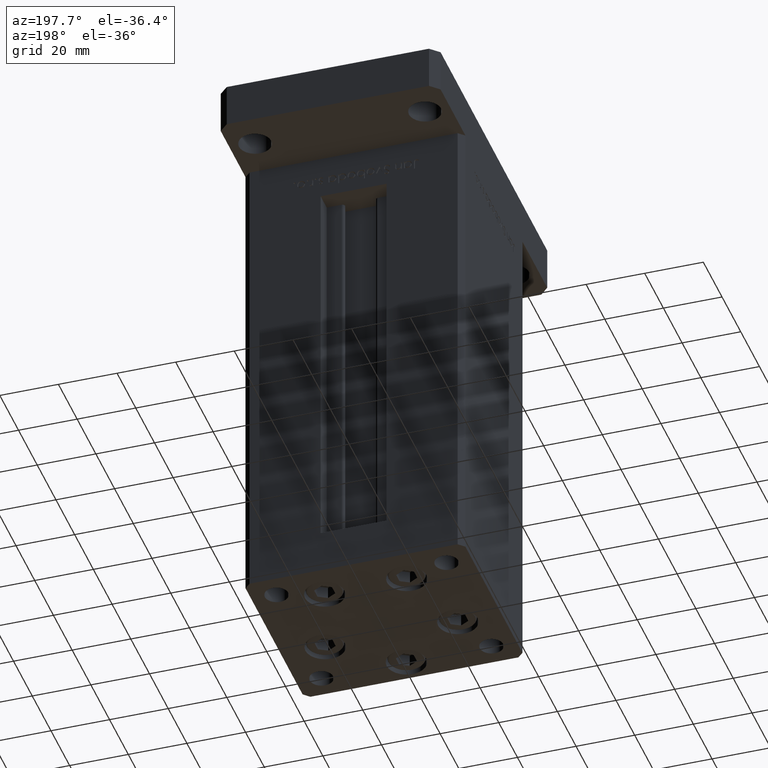
[diagram: clean part render]
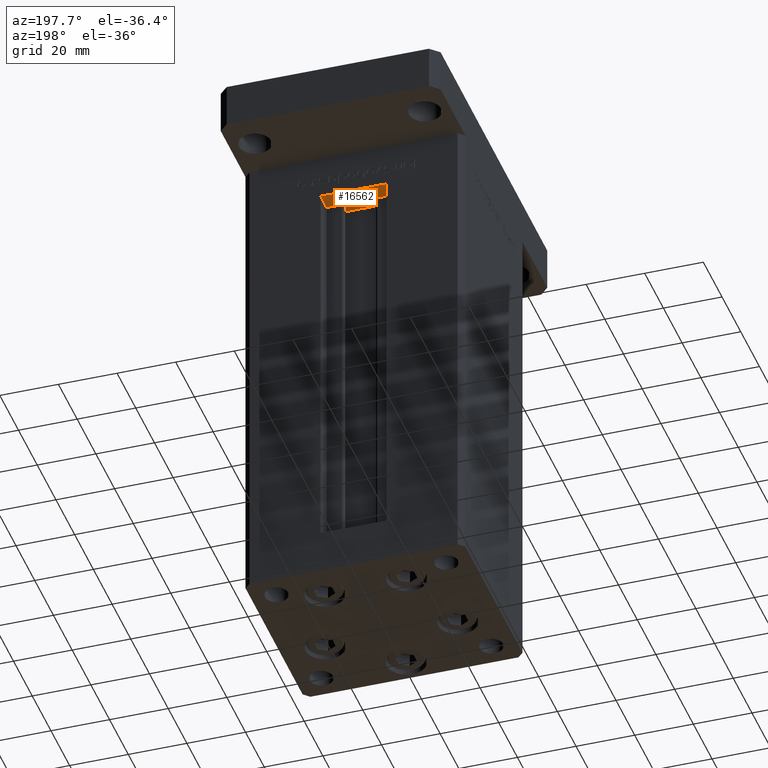
[diagram: same view with one face highlighted and labeled with its STEP entity id]
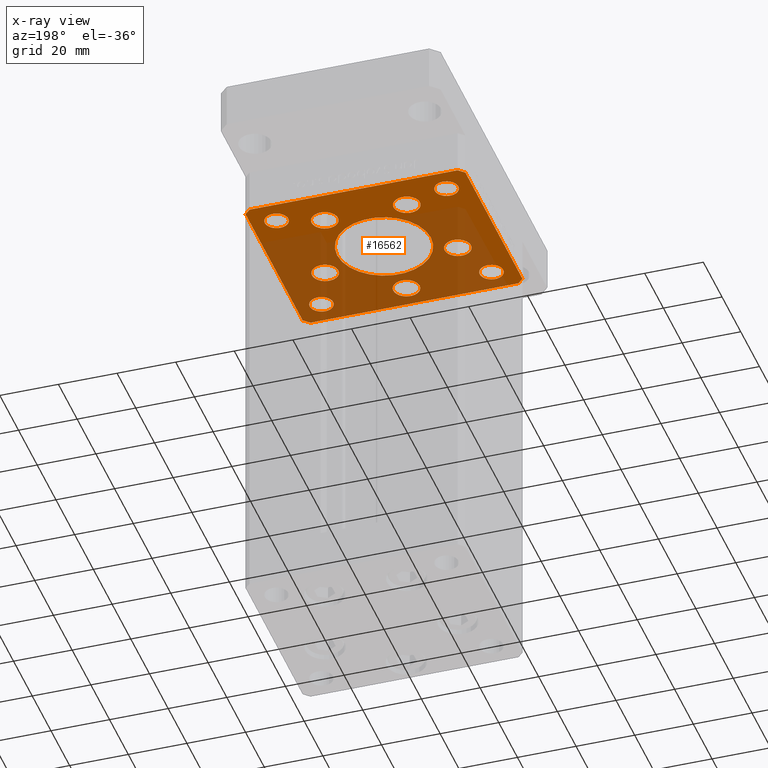
[diagram: x-ray of the same camera — body ghosted, the highlighted face saturated]
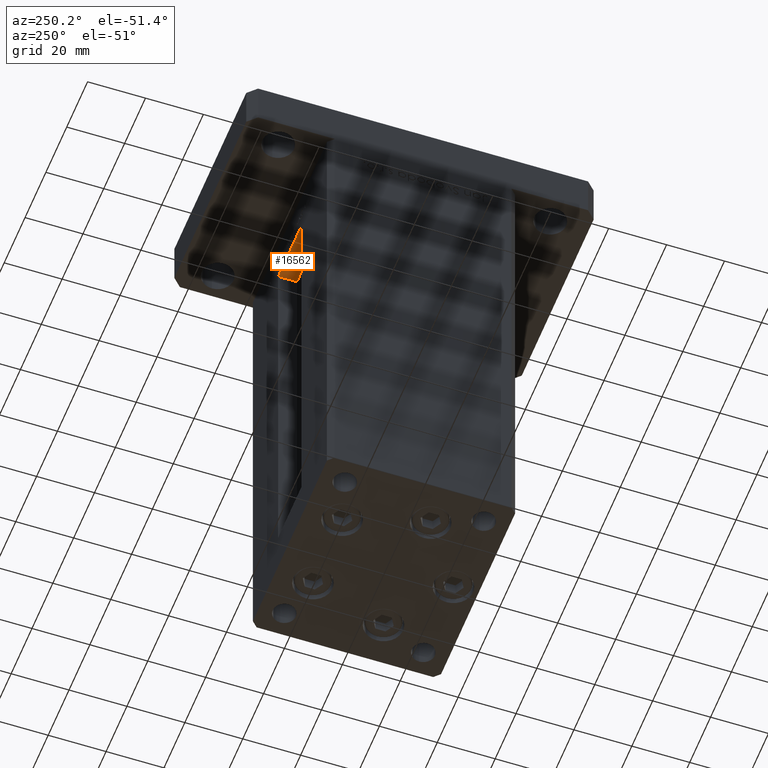
[diagram: same view with one face highlighted and labeled with its STEP entity id]
A machine part, auxiliary view. The second image highlights one B-rep face of the part: STEP entity #16562.
The next image is the same camera in x-ray: the body ghosted, the highlighted face saturated — about 59% of this face is hidden behind the body in this view.
A second angle (auxiliary view) of the same face is appended — the face is thin or edge-on in the first view.
In plain terms, the highlighted planar face has unit normal (0, 0, 1).
Its self-contained STEP definition (entity closure, byte-faithful):
#244 = CARTESIAN_POINT ( 'NONE',  ( -27.12741699796953299, -8.000000000000000000, -15.00000000000000000 ) ) ;
#480 = VERTEX_POINT ( 'NONE', #35159 ) ;
#587 = DIRECTION ( 'NONE',  ( 1.000000000000000000, 0.000000000000000000, 0.000000000000000000 ) ) ;
#772 = CIRCLE ( 'NONE', #6809, 3.999999999999996447 ) ;
#1152 = AXIS2_PLACEMENT_3D ( 'NONE', #46467, #50280, #17977 ) ;
#1367 = DIRECTION ( 'NONE',  ( 1.000000000000000000, 0.000000000000000000, 0.000000000000000000 ) ) ;
#1419 = AXIS2_PLACEMENT_3D ( 'NONE', #44611, #48950, #37286 ) ;
#1457 = AXIS2_PLACEMENT_3D ( 'NONE', #18204, #14936, #43148 ) ;
#1461 = VERTEX_POINT ( 'NONE', #46827 ) ;
#1472 = AXIS2_PLACEMENT_3D ( 'NONE', #30122, #37461, #29062 ) ;
#1492 = CARTESIAN_POINT ( 'NONE',  ( 35.50000000000000000, 32.49999999999999289, -15.00000000000000000 ) ) ;
#1499 = LINE ( 'NONE', #2299, #52397 ) ;
#1659 = EDGE_LOOP ( 'NONE', ( #9733, #17841 ) ) ;
#2299 = CARTESIAN_POINT ( 'NONE',  ( 35.50000000000000000, 32.49999999999999289, -15.00000000000000000 ) ) ;
#2612 = CARTESIAN_POINT ( 'NONE',  ( 0.000000000000000000, -24.00000000000001066, -15.00000000000000000 ) ) ;
#2730 = DIRECTION ( 'NONE',  ( 0.000000000000000000, -0.000000000000000000, -1.000000000000000000 ) ) ;
#2997 = DIRECTION ( 'NONE',  ( 1.000000000000000000, 0.000000000000000000, 0.000000000000000000 ) ) ;
#3178 = CIRCLE ( 'NONE', #40387, 4.499999999999997335 ) ;
#3683 = EDGE_LOOP ( 'NONE', ( #8893, #17832 ) ) ;
#4376 = VERTEX_POINT ( 'NONE', #16429 ) ;
#4392 = CARTESIAN_POINT ( 'NONE',  ( -13.99106857963324124, 19.50000000000000000, -15.00000000000000000 ) ) ;
#4536 = CIRCLE ( 'NONE', #53010, 3.999999999999996447 ) ;
#4809 = ORIENTED_EDGE ( 'NONE', *, *, #29317, .F. ) ;
#5311 = FACE_BOUND ( 'NONE', #3683, .T. ) ;
#5689 = DIRECTION ( 'NONE',  ( 0.7071067811865463515, 0.7071067811865487940, 0.000000000000000000 ) ) ;
#6235 = EDGE_LOOP ( 'NONE', ( #37870, #4809 ) ) ;
#6254 = ORIENTED_EDGE ( 'NONE', *, *, #25591, .F. ) ;
#6809 = AXIS2_PLACEMENT_3D ( 'NONE', #19136, #39737, #42999 ) ;
#6948 = EDGE_CURVE ( 'NONE', #33023, #41171, #50171, .T. ) ;
#7063 = ORIENTED_EDGE ( 'NONE', *, *, #50058, .F. ) ;
#7759 = ORIENTED_EDGE ( 'NONE', *, *, #29267, .F. ) ;
#7893 = DIRECTION ( 'NONE',  ( -0.000000000000000000, -0.000000000000000000, -1.000000000000000000 ) ) ;
#8120 = ORIENTED_EDGE ( 'NONE', *, *, #29520, .T. ) ;
#8382 = VECTOR ( 'NONE', #5689, 1000.000000000000000 ) ;
#8893 = ORIENTED_EDGE ( 'NONE', *, *, #31384, .F. ) ;
#9128 = FACE_BOUND ( 'NONE', #32254, .T. ) ;
#9393 = FACE_BOUND ( 'NONE', #44944, .T. ) ;
#9646 = FACE_BOUND ( 'NONE', #24873, .T. ) ;
#9733 = ORIENTED_EDGE ( 'NONE', *, *, #28221, .F. ) ;
#9857 = DIRECTION ( 'NONE',  ( 0.000000000000000000, -0.000000000000000000, -1.000000000000000000 ) ) ;
#10280 = CIRCLE ( 'NONE', #18057, 4.500000000000005329 ) ;
#10323 = AXIS2_PLACEMENT_3D ( 'NONE', #23260, #44684, #19742 ) ;
#10444 = EDGE_CURVE ( 'NONE', #44048, #10843, #32278, .T. ) ;
#10486 = CARTESIAN_POINT ( 'NONE',  ( 0.000000000000000000, 0.000000000000000000, -15.00000000000000000 ) ) ;
#10843 = VERTEX_POINT ( 'NONE', #28467 ) ;
#10942 = EDGE_CURVE ( 'NONE', #37726, #47672, #24122, .T. ) ;
#10961 = ORIENTED_EDGE ( 'NONE', *, *, #46924, .F. ) ;
#11614 = DIRECTION ( 'NONE',  ( 0.000000000000000000, 0.000000000000000000, 1.000000000000000000 ) ) ;
#11751 = VECTOR ( 'NONE', #12612, 1000.000000000000000 ) ;
#11824 = DIRECTION ( 'NONE',  ( 0.000000000000000000, -0.000000000000000000, -1.000000000000000000 ) ) ;
#12174 = CARTESIAN_POINT ( 'NONE',  ( 24.99999999999999645, 24.00000000000000355, -15.00000000000000000 ) ) ;
#12539 = CIRCLE ( 'NONE', #40218, 4.000000000000000000 ) ;
#12612 = DIRECTION ( 'NONE',  ( 0.7071067811865512365, -0.7071067811865439090, 0.000000000000000000 ) ) ;
#12741 = AXIS2_PLACEMENT_3D ( 'NONE', #23258, #19466, #28891 ) ;
#12886 = CARTESIAN_POINT ( 'NONE',  ( 13.99106857963324124, 19.50000000000000000, -15.00000000000000000 ) ) ;
#12923 = CARTESIAN_POINT ( 'NONE',  ( -29.00000000000000000, 24.00000000000000711, -15.00000000000000000 ) ) ;
#12970 = CARTESIAN_POINT ( 'NONE',  ( 25.00000000000000355, -23.99999999999999645, -15.00000000000000000 ) ) ;
#13377 = CARTESIAN_POINT ( 'NONE',  ( 33.00000000000000000, -23.99999999999999645, -15.00000000000000000 ) ) ;
#13531 = CIRCLE ( 'NONE', #1419, 4.000000000000000000 ) ;
#14936 = DIRECTION ( 'NONE',  ( 0.000000000000000000, -0.000000000000000000, -1.000000000000000000 ) ) ;
#15020 = CARTESIAN_POINT ( 'NONE',  ( -35.50000000000001421, -32.50000000000000711, -15.00000000000000000 ) ) ;
#15356 = CARTESIAN_POINT ( 'NONE',  ( 9.491068579633235913, 19.50000000000000000, -15.00000000000000000 ) ) ;
#16076 = VERTEX_POINT ( 'NONE', #35498 ) ;
#16429 = CARTESIAN_POINT ( 'NONE',  ( -33.00000000000000000, 24.00000000000000711, -15.00000000000000000 ) ) ;
#16562 = ADVANCED_FACE ( 'NONE', ( #9128, #42192, #34061, #50866, #50596, #46527, #9646, #9393, #42444, #5311, #26173 ), #29201, .F. ) ;
#16624 = EDGE_CURVE ( 'NONE', #10843, #44048, #48073, .T. ) ;
#16716 = CIRCLE ( 'NONE', #1152, 4.500000000000001776 ) ;
#16754 = ORIENTED_EDGE ( 'NONE', *, *, #47394, .F. ) ;
#16797 = EDGE_LOOP ( 'NONE', ( #46555, #6254 ) ) ;
#16867 = DIRECTION ( 'NONE',  ( -1.000000000000000000, 0.000000000000000000, 0.000000000000000000 ) ) ;
#17480 = EDGE_CURVE ( 'NONE', #43196, #39863, #52169, .T. ) ;
#17559 = VERTEX_POINT ( 'NONE', #33727 ) ;
#17735 = VERTEX_POINT ( 'NONE', #48842 ) ;
#17769 = CARTESIAN_POINT ( 'NONE',  ( 0.000000000000000000, 0.000000000000000000, -15.00000000000000000 ) ) ;
#17832 = ORIENTED_EDGE ( 'NONE', *, *, #45176, .F. ) ;
#17841 = ORIENTED_EDGE ( 'NONE', *, *, #51163, .F. ) ;
#17977 = DIRECTION ( 'NONE',  ( 1.000000000000000000, 0.000000000000000000, 0.000000000000000000 ) ) ;
#18057 = AXIS2_PLACEMENT_3D ( 'NONE', #48540, #2730, #2997 ) ;
#18204 = CARTESIAN_POINT ( 'NONE',  ( 0.000000000000000000, 0.000000000000000000, -15.00000000000000000 ) ) ;
#18367 = CARTESIAN_POINT ( 'NONE',  ( -37.50000000000000000, -30.50000000000004263, -15.00000000000000000 ) ) ;
#18378 = DIRECTION ( 'NONE',  ( -0.7071067811865524577, 0.7071067811865426878, 0.000000000000000000 ) ) ;
#19136 = CARTESIAN_POINT ( 'NONE',  ( -29.00000000000000000, -23.99999999999999645, -15.00000000000000000 ) ) ;
#19466 = DIRECTION ( 'NONE',  ( -0.000000000000000000, -0.000000000000000000, -1.000000000000000000 ) ) ;
#19540 = CARTESIAN_POINT ( 'NONE',  ( -29.00000000000000000, 24.00000000000000711, -15.00000000000000000 ) ) ;
#19709 = CARTESIAN_POINT ( 'NONE',  ( 35.50000000000001421, -32.49999999999992184, -15.00000000000000000 ) ) ;
#19742 = DIRECTION ( 'NONE',  ( 1.000000000000000000, 0.000000000000000000, 0.000000000000000000 ) ) ;
#19874 = EDGE_CURVE ( 'NONE', #39863, #37726, #43086, .T. ) ;
#20207 = VECTOR ( 'NONE', #45276, 1000.000000000000000 ) ;
#20225 = EDGE_CURVE ( 'NONE', #44536, #33023, #1499, .T. ) ;
#20461 = VECTOR ( 'NONE', #18378, 1000.000000000000000 ) ;
#20684 = VERTEX_POINT ( 'NONE', #45600 ) ;
#20866 = ORIENTED_EDGE ( 'NONE', *, *, #30642, .T. ) ;
#20910 = EDGE_CURVE ( 'NONE', #26628, #17559, #24828, .T. ) ;
#21457 = CARTESIAN_POINT ( 'NONE',  ( 29.00000000000000355, -23.99999999999999645, -15.00000000000000000 ) ) ;
#21510 = CIRCLE ( 'NONE', #29306, 4.000000000000000000 ) ;
#22096 = DIRECTION ( 'NONE',  ( 1.000000000000000000, 0.000000000000000000, 0.000000000000000000 ) ) ;
#22346 = VECTOR ( 'NONE', #28202, 1000.000000000000000 ) ;
#22734 = ORIENTED_EDGE ( 'NONE', *, *, #39019, .F. ) ;
#23136 = CARTESIAN_POINT ( 'NONE',  ( 37.50000000000000711, 30.50000000000001421, -15.00000000000000000 ) ) ;
#23258 = CARTESIAN_POINT ( 'NONE',  ( 29.00000000000000355, -23.99999999999999645, -15.00000000000000000 ) ) ;
#23260 = CARTESIAN_POINT ( 'NONE',  ( 29.00000000000000000, 24.00000000000000355, -15.00000000000000000 ) ) ;
#23636 = AXIS2_PLACEMENT_3D ( 'NONE', #29942, #9857, #46480 ) ;
#24005 = VERTEX_POINT ( 'NONE', #12174 ) ;
#24017 = EDGE_CURVE ( 'NONE', #24880, #480, #3178, .T. ) ;
#24122 = LINE ( 'NONE', #44456, #20207 ) ;
#24329 = CARTESIAN_POINT ( 'NONE',  ( -37.50000000000001421, 30.50000000000000000, -15.00000000000000000 ) ) ;
#24828 = CIRCLE ( 'NONE', #46359, 4.500000000000000888 ) ;
#24864 = CIRCLE ( 'NONE', #1472, 4.500000000000000888 ) ;
#24873 = EDGE_LOOP ( 'NONE', ( #28126, #20866 ) ) ;
#24880 = VERTEX_POINT ( 'NONE', #244 ) ;
#25053 = CIRCLE ( 'NONE', #47558, 4.000000000000000000 ) ;
#25591 = EDGE_CURVE ( 'NONE', #17559, #26628, #24864, .T. ) ;
#25650 = DIRECTION ( 'NONE',  ( -1.000000000000000000, 0.000000000000000000, 0.000000000000000000 ) ) ;
#26173 = FACE_BOUND ( 'NONE', #1659, .T. ) ;
#26628 = VERTEX_POINT ( 'NONE', #44646 ) ;
#27018 = DIRECTION ( 'NONE',  ( 0.000000000000000000, -0.000000000000000000, -1.000000000000000000 ) ) ;
#27132 = CARTESIAN_POINT ( 'NONE',  ( -18.49106857963323947, 19.50000000000000000, -15.00000000000000000 ) ) ;
#27300 = AXIS2_PLACEMENT_3D ( 'NONE', #28183, #45000, #41470 ) ;
#27516 = VERTEX_POINT ( 'NONE', #18367 ) ;
#27872 = DIRECTION ( 'NONE',  ( 1.000000000000000000, 0.000000000000000000, 0.000000000000000000 ) ) ;
#28126 = ORIENTED_EDGE ( 'NONE', *, *, #50454, .T. ) ;
#28183 = CARTESIAN_POINT ( 'NONE',  ( -22.62741699796953299, -8.000000000000000000, -15.00000000000000000 ) ) ;
#28202 = DIRECTION ( 'NONE',  ( 2.275047181608926165E-16, -1.000000000000000000, 0.000000000000000000 ) ) ;
#28221 = EDGE_CURVE ( 'NONE', #38616, #52174, #21510, .T. ) ;
#28467 = CARTESIAN_POINT ( 'NONE',  ( -9.491068579633243019, 19.50000000000000000, -15.00000000000000000 ) ) ;
#28522 = DIRECTION ( 'NONE',  ( 0.000000000000000000, -0.000000000000000000, -1.000000000000000000 ) ) ;
#28668 = ORIENTED_EDGE ( 'NONE', *, *, #10444, .F. ) ;
#28828 = CIRCLE ( 'NONE', #52196, 16.00000000000000355 ) ;
#28891 = DIRECTION ( 'NONE',  ( -1.000000000000000000, 0.000000000000000000, 0.000000000000000000 ) ) ;
#29033 = CARTESIAN_POINT ( 'NONE',  ( 16.00000000000000355, 0.000000000000000000, -15.00000000000000000 ) ) ;
#29062 = DIRECTION ( 'NONE',  ( 1.000000000000000000, 0.000000000000000000, 0.000000000000000000 ) ) ;
#29085 = CARTESIAN_POINT ( 'NONE',  ( 37.50000000000000711, 30.50000000000001421, -15.00000000000000000 ) ) ;
#29201 = PLANE ( 'NONE',  #41148 ) ;
#29267 = EDGE_CURVE ( 'NONE', #41171, #27516, #38283, .T. ) ;
#29306 = AXIS2_PLACEMENT_3D ( 'NONE', #21457, #33419, #16867 ) ;
#29317 = EDGE_CURVE ( 'NONE', #39038, #45077, #10280, .T. ) ;
#29520 = EDGE_CURVE ( 'NONE', #43683, #20684, #772, .T. ) ;
#29835 = CARTESIAN_POINT ( 'NONE',  ( 35.50000000000001421, -32.49999999999992184, -15.00000000000000000 ) ) ;
#29942 = CARTESIAN_POINT ( 'NONE',  ( -13.99106857963324124, 19.50000000000000000, -15.00000000000000000 ) ) ;
#30122 = CARTESIAN_POINT ( 'NONE',  ( 22.62741699796953299, -8.000000000000000000, -15.00000000000000000 ) ) ;
#30642 = EDGE_CURVE ( 'NONE', #24005, #17735, #51004, .T. ) ;
#31280 = CARTESIAN_POINT ( 'NONE',  ( -25.00000000000000355, -23.99999999999999645, -15.00000000000000000 ) ) ;
#31320 = ORIENTED_EDGE ( 'NONE', *, *, #20225, .F. ) ;
#31384 = EDGE_CURVE ( 'NONE', #51134, #4376, #25053, .T. ) ;
#31568 = DIRECTION ( 'NONE',  ( 1.000000000000000000, 1.172770800660376149E-15, 0.000000000000000000 ) ) ;
#32254 = EDGE_LOOP ( 'NONE', ( #22734, #49853 ) ) ;
#32268 = ORIENTED_EDGE ( 'NONE', *, *, #10942, .F. ) ;
#32278 = CIRCLE ( 'NONE', #23636, 4.499999999999999112 ) ;
#32650 = EDGE_LOOP ( 'NONE', ( #38651, #28668 ) ) ;
#32994 = DIRECTION ( 'NONE',  ( -0.000000000000000000, -0.000000000000000000, -1.000000000000000000 ) ) ;
#33023 = VERTEX_POINT ( 'NONE', #46927 ) ;
#33419 = DIRECTION ( 'NONE',  ( -0.000000000000000000, -0.000000000000000000, -1.000000000000000000 ) ) ;
#33630 = CARTESIAN_POINT ( 'NONE',  ( -35.50000000000000711, 32.49999999999997868, -15.00000000000000000 ) ) ;
#33727 = CARTESIAN_POINT ( 'NONE',  ( 18.12741699796953299, -8.000000000000000000, -15.00000000000000000 ) ) ;
#34061 = FACE_BOUND ( 'NONE', #38017, .T. ) ;
#34327 = DIRECTION ( 'NONE',  ( -0.000000000000000000, 0.000000000000000000, 1.000000000000000000 ) ) ;
#34998 = EDGE_LOOP ( 'NONE', ( #10961, #51527 ) ) ;
#35159 = CARTESIAN_POINT ( 'NONE',  ( -18.12741699796953654, -8.000000000000000000, -15.00000000000000000 ) ) ;
#35498 = CARTESIAN_POINT ( 'NONE',  ( -4.500000000000001776, -24.00000000000001066, -15.00000000000000000 ) ) ;
#36615 = DIRECTION ( 'NONE',  ( -1.000000000000000000, 0.000000000000000000, 0.000000000000000000 ) ) ;
#37279 = DIRECTION ( 'NONE',  ( 1.000000000000000000, 0.000000000000000000, 0.000000000000000000 ) ) ;
#37286 = DIRECTION ( 'NONE',  ( 1.000000000000000000, 0.000000000000000000, 0.000000000000000000 ) ) ;
#37461 = DIRECTION ( 'NONE',  ( 0.000000000000000000, -0.000000000000000000, -1.000000000000000000 ) ) ;
#37709 = AXIS2_PLACEMENT_3D ( 'NONE', #4392, #28522, #587 ) ;
#37726 = VERTEX_POINT ( 'NONE', #38751 ) ;
#37765 = EDGE_CURVE ( 'NONE', #20684, #43683, #4536, .T. ) ;
#37870 = ORIENTED_EDGE ( 'NONE', *, *, #52492, .F. ) ;
#38017 = EDGE_LOOP ( 'NONE', ( #16754, #51992 ) ) ;
#38283 = LINE ( 'NONE', #43940, #22346 ) ;
#38291 = VECTOR ( 'NONE', #42529, 1000.000000000000000 ) ;
#38386 = ORIENTED_EDGE ( 'NONE', *, *, #52629, .F. ) ;
#38478 = CARTESIAN_POINT ( 'NONE',  ( -25.00000000000000000, 24.00000000000000711, -15.00000000000000000 ) ) ;
#38513 = DIRECTION ( 'NONE',  ( 0.000000000000000000, -0.000000000000000000, -1.000000000000000000 ) ) ;
#38616 = VERTEX_POINT ( 'NONE', #13377 ) ;
#38651 = ORIENTED_EDGE ( 'NONE', *, *, #16624, .F. ) ;
#38751 = CARTESIAN_POINT ( 'NONE',  ( 37.50000000000000711, -30.49999999999992895, -15.00000000000000000 ) ) ;
#39019 = EDGE_CURVE ( 'NONE', #47982, #1461, #28828, .T. ) ;
#39038 = VERTEX_POINT ( 'NONE', #15356 ) ;
#39737 = DIRECTION ( 'NONE',  ( 0.000000000000000000, 0.000000000000000000, 1.000000000000000000 ) ) ;
#39863 = VERTEX_POINT ( 'NONE', #19709 ) ;
#40218 = AXIS2_PLACEMENT_3D ( 'NONE', #12923, #32994, #25650 ) ;
#40387 = AXIS2_PLACEMENT_3D ( 'NONE', #50586, #45245, #46515 ) ;
#40412 = EDGE_CURVE ( 'NONE', #16076, #53165, #16716, .T. ) ;
#40663 = CARTESIAN_POINT ( 'NONE',  ( 4.500000000000001776, -24.00000000000001066, -15.00000000000000000 ) ) ;
#41096 = ORIENTED_EDGE ( 'NONE', *, *, #37765, .T. ) ;
#41148 = AXIS2_PLACEMENT_3D ( 'NONE', #17769, #34327, #22096 ) ;
#41171 = VERTEX_POINT ( 'NONE', #24329 ) ;
#41470 = DIRECTION ( 'NONE',  ( 1.000000000000000000, 0.000000000000000000, 0.000000000000000000 ) ) ;
#41877 = LINE ( 'NONE', #45949, #11751 ) ;
#42192 = FACE_BOUND ( 'NONE', #34998, .T. ) ;
#42199 = ORIENTED_EDGE ( 'NONE', *, *, #17480, .F. ) ;
#42444 = FACE_OUTER_BOUND ( 'NONE', #46415, .T. ) ;
#42529 = DIRECTION ( 'NONE',  ( -0.7071067811865524577, -0.7071067811865426878, 0.000000000000000000 ) ) ;
#42565 = CARTESIAN_POINT ( 'NONE',  ( 22.62741699796953299, -8.000000000000000000, -15.00000000000000000 ) ) ;
#42599 = CARTESIAN_POINT ( 'NONE',  ( -35.50000000000001421, -32.50000000000000711, -15.00000000000000000 ) ) ;
#42999 = DIRECTION ( 'NONE',  ( 1.000000000000000000, 0.000000000000000000, 0.000000000000000000 ) ) ;
#43086 = LINE ( 'NONE', #29835, #8382 ) ;
#43148 = DIRECTION ( 'NONE',  ( 1.000000000000000000, 0.000000000000000000, 0.000000000000000000 ) ) ;
#43196 = VERTEX_POINT ( 'NONE', #42599 ) ;
#43683 = VERTEX_POINT ( 'NONE', #31280 ) ;
#43820 = DIRECTION ( 'NONE',  ( 1.000000000000000000, 0.000000000000000000, 0.000000000000000000 ) ) ;
#43868 = CIRCLE ( 'NONE', #12741, 4.000000000000000000 ) ;
#43940 = CARTESIAN_POINT ( 'NONE',  ( -37.50000000000001421, 30.50000000000000000, -15.00000000000000000 ) ) ;
#44048 = VERTEX_POINT ( 'NONE', #27132 ) ;
#44097 = DIRECTION ( 'NONE',  ( 1.000000000000000000, 0.000000000000000000, 0.000000000000000000 ) ) ;
#44125 = ORIENTED_EDGE ( 'NONE', *, *, #6948, .F. ) ;
#44456 = CARTESIAN_POINT ( 'NONE',  ( 37.50000000000000711, -30.49999999999992895, -15.00000000000000000 ) ) ;
#44536 = VERTEX_POINT ( 'NONE', #1492 ) ;
#44611 = CARTESIAN_POINT ( 'NONE',  ( 29.00000000000000000, 24.00000000000000355, -15.00000000000000000 ) ) ;
#44642 = CIRCLE ( 'NONE', #48944, 4.500000000000001776 ) ;
#44646 = CARTESIAN_POINT ( 'NONE',  ( 27.12741699796953654, -8.000000000000000000, -15.00000000000000000 ) ) ;
#44684 = DIRECTION ( 'NONE',  ( 0.000000000000000000, 0.000000000000000000, 1.000000000000000000 ) ) ;
#44944 = EDGE_LOOP ( 'NONE', ( #8120, #41096 ) ) ;
#45000 = DIRECTION ( 'NONE',  ( 0.000000000000000000, -0.000000000000000000, -1.000000000000000000 ) ) ;
#45077 = VERTEX_POINT ( 'NONE', #46576 ) ;
#45176 = EDGE_CURVE ( 'NONE', #4376, #51134, #12539, .T. ) ;
#45245 = DIRECTION ( 'NONE',  ( 0.000000000000000000, -0.000000000000000000, -1.000000000000000000 ) ) ;
#45276 = DIRECTION ( 'NONE',  ( 0.000000000000000000, 1.000000000000000000, 0.000000000000000000 ) ) ;
#45418 = DIRECTION ( 'NONE',  ( 0.000000000000000000, -0.000000000000000000, -1.000000000000000000 ) ) ;
#45600 = CARTESIAN_POINT ( 'NONE',  ( -32.99999999999999289, -23.99999999999999645, -15.00000000000000000 ) ) ;
#45949 = CARTESIAN_POINT ( 'NONE',  ( -37.50000000000000000, -30.50000000000004263, -15.00000000000000000 ) ) ;
#46359 = AXIS2_PLACEMENT_3D ( 'NONE', #42565, #38513, #1367 ) ;
#46415 = EDGE_LOOP ( 'NONE', ( #38386, #7759, #44125, #31320, #7063, #32268, #52062, #42199 ) ) ;
#46467 = CARTESIAN_POINT ( 'NONE',  ( 0.000000000000000000, -24.00000000000001066, -15.00000000000000000 ) ) ;
#46480 = DIRECTION ( 'NONE',  ( 1.000000000000000000, 0.000000000000000000, 0.000000000000000000 ) ) ;
#46515 = DIRECTION ( 'NONE',  ( 1.000000000000000000, 0.000000000000000000, 0.000000000000000000 ) ) ;
#46527 = FACE_BOUND ( 'NONE', #32650, .T. ) ;
#46555 = ORIENTED_EDGE ( 'NONE', *, *, #20910, .F. ) ;
#46576 = CARTESIAN_POINT ( 'NONE',  ( 18.49106857963324657, 19.50000000000000000, -15.00000000000000000 ) ) ;
#46827 = CARTESIAN_POINT ( 'NONE',  ( -16.00000000000000355, 1.959434878635765526E-15, -15.00000000000000000 ) ) ;
#46924 = EDGE_CURVE ( 'NONE', #480, #24880, #50681, .T. ) ;
#46927 = CARTESIAN_POINT ( 'NONE',  ( -35.50000000000000711, 32.49999999999997868, -15.00000000000000000 ) ) ;
#47394 = EDGE_CURVE ( 'NONE', #53165, #16076, #44642, .T. ) ;
#47558 = AXIS2_PLACEMENT_3D ( 'NONE', #19540, #7893, #36615 ) ;
#47672 = VERTEX_POINT ( 'NONE', #23136 ) ;
#47982 = VERTEX_POINT ( 'NONE', #29033 ) ;
#48073 = CIRCLE ( 'NONE', #37709, 4.499999999999999112 ) ;
#48132 = CIRCLE ( 'NONE', #51559, 4.500000000000005329 ) ;
#48540 = CARTESIAN_POINT ( 'NONE',  ( 13.99106857963324124, 19.50000000000000000, -15.00000000000000000 ) ) ;
#48842 = CARTESIAN_POINT ( 'NONE',  ( 33.00000000000000000, 24.00000000000000355, -15.00000000000000000 ) ) ;
#48944 = AXIS2_PLACEMENT_3D ( 'NONE', #2612, #11824, #43820 ) ;
#48950 = DIRECTION ( 'NONE',  ( 0.000000000000000000, 0.000000000000000000, 1.000000000000000000 ) ) ;
#49853 = ORIENTED_EDGE ( 'NONE', *, *, #51578, .F. ) ;
#50058 = EDGE_CURVE ( 'NONE', #47672, #44536, #51463, .T. ) ;
#50171 = LINE ( 'NONE', #33630, #38291 ) ;
#50280 = DIRECTION ( 'NONE',  ( 0.000000000000000000, -0.000000000000000000, -1.000000000000000000 ) ) ;
#50454 = EDGE_CURVE ( 'NONE', #17735, #24005, #13531, .T. ) ;
#50586 = CARTESIAN_POINT ( 'NONE',  ( -22.62741699796953299, -8.000000000000000000, -15.00000000000000000 ) ) ;
#50596 = FACE_BOUND ( 'NONE', #6235, .T. ) ;
#50681 = CIRCLE ( 'NONE', #27300, 4.499999999999997335 ) ;
#50866 = FACE_BOUND ( 'NONE', #16797, .T. ) ;
#51004 = CIRCLE ( 'NONE', #10323, 4.000000000000000000 ) ;
#51134 = VERTEX_POINT ( 'NONE', #38478 ) ;
#51163 = EDGE_CURVE ( 'NONE', #52174, #38616, #43868, .T. ) ;
#51463 = LINE ( 'NONE', #29085, #20461 ) ;
#51527 = ORIENTED_EDGE ( 'NONE', *, *, #24017, .F. ) ;
#51559 = AXIS2_PLACEMENT_3D ( 'NONE', #12886, #45418, #37279 ) ;
#51578 = EDGE_CURVE ( 'NONE', #1461, #47982, #52540, .T. ) ;
#51589 = VECTOR ( 'NONE', #31568, 1000.000000000000000 ) ;
#51912 = DIRECTION ( 'NONE',  ( -1.000000000000000000, -1.954618001100627573E-16, 0.000000000000000000 ) ) ;
#51992 = ORIENTED_EDGE ( 'NONE', *, *, #40412, .F. ) ;
#52062 = ORIENTED_EDGE ( 'NONE', *, *, #19874, .F. ) ;
#52169 = LINE ( 'NONE', #15020, #51589 ) ;
#52174 = VERTEX_POINT ( 'NONE', #12970 ) ;
#52196 = AXIS2_PLACEMENT_3D ( 'NONE', #10486, #27018, #44097 ) ;
#52397 = VECTOR ( 'NONE', #51912, 1000.000000000000000 ) ;
#52492 = EDGE_CURVE ( 'NONE', #45077, #39038, #48132, .T. ) ;
#52540 = CIRCLE ( 'NONE', #1457, 16.00000000000000355 ) ;
#52629 = EDGE_CURVE ( 'NONE', #27516, #43196, #41877, .T. ) ;
#52828 = CARTESIAN_POINT ( 'NONE',  ( -29.00000000000000000, -23.99999999999999645, -15.00000000000000000 ) ) ;
#53010 = AXIS2_PLACEMENT_3D ( 'NONE', #52828, #11614, #27872 ) ;
#53165 = VERTEX_POINT ( 'NONE', #40663 ) ;